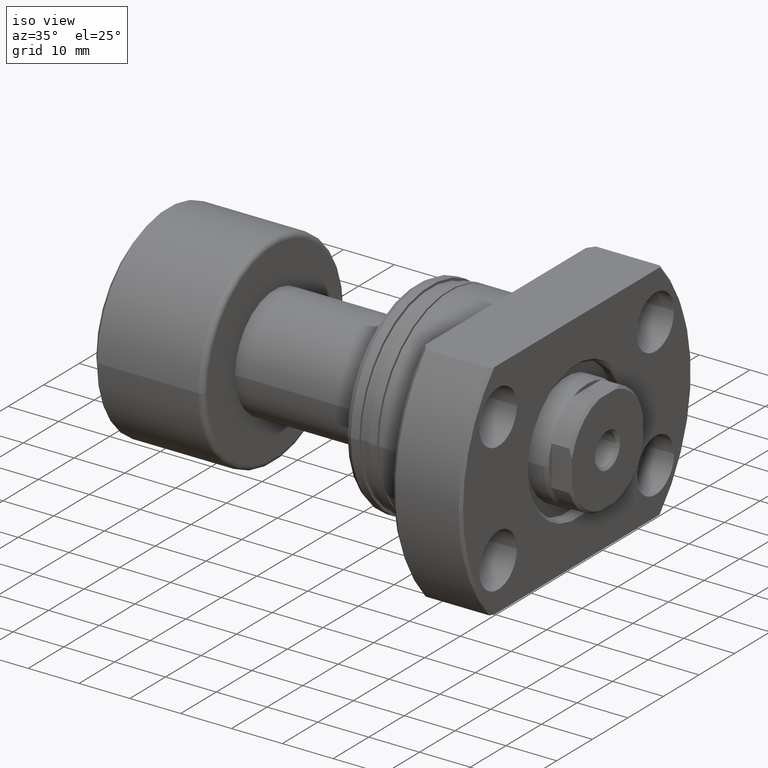
[diagram: clean part render]
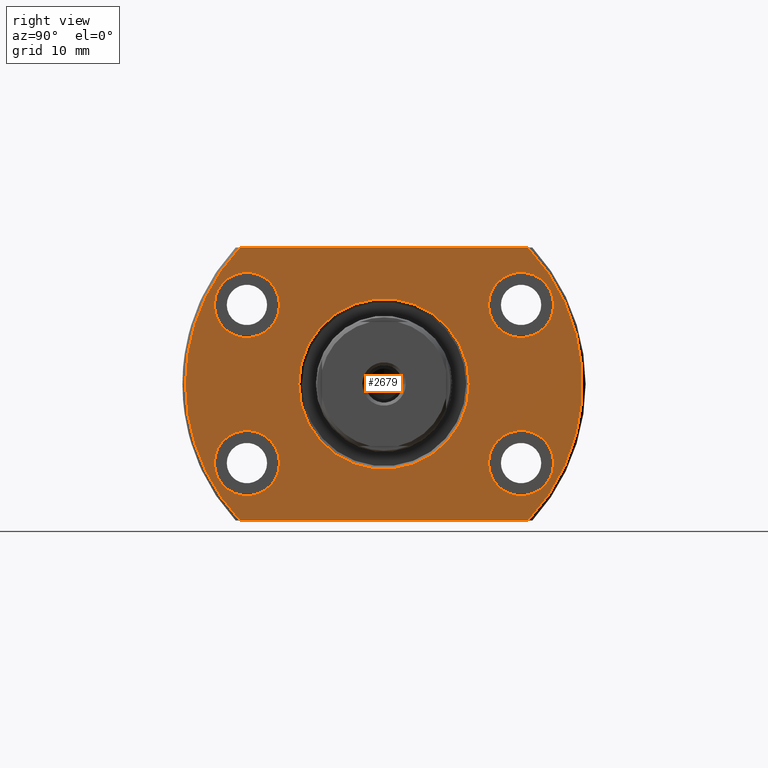
[diagram: tour spotlight — one face highlighted and labeled with its STEP entity id]
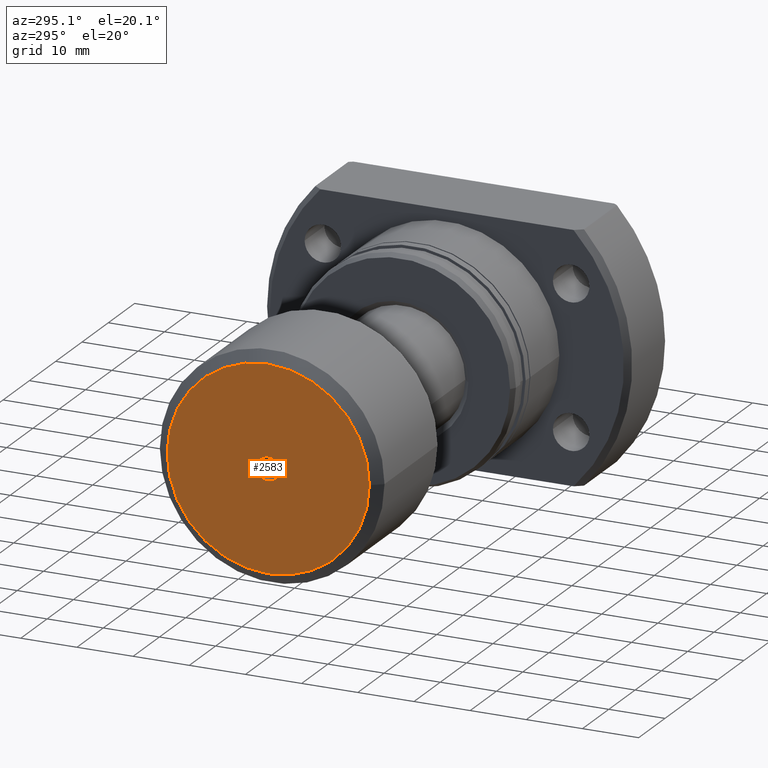
[diagram: tour spotlight — one face highlighted and labeled with its STEP entity id]
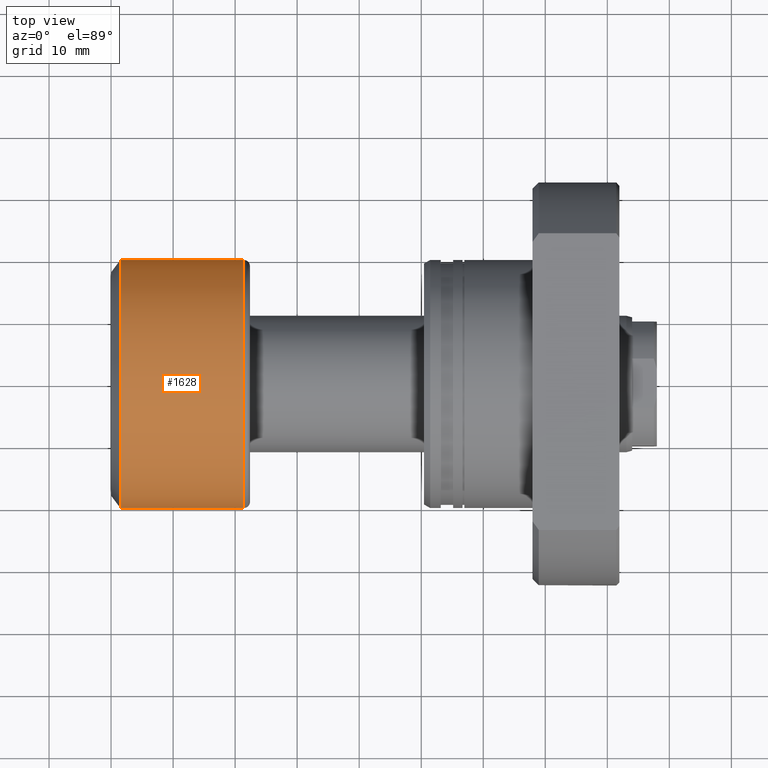
[diagram: tour spotlight — one face highlighted and labeled with its STEP entity id]
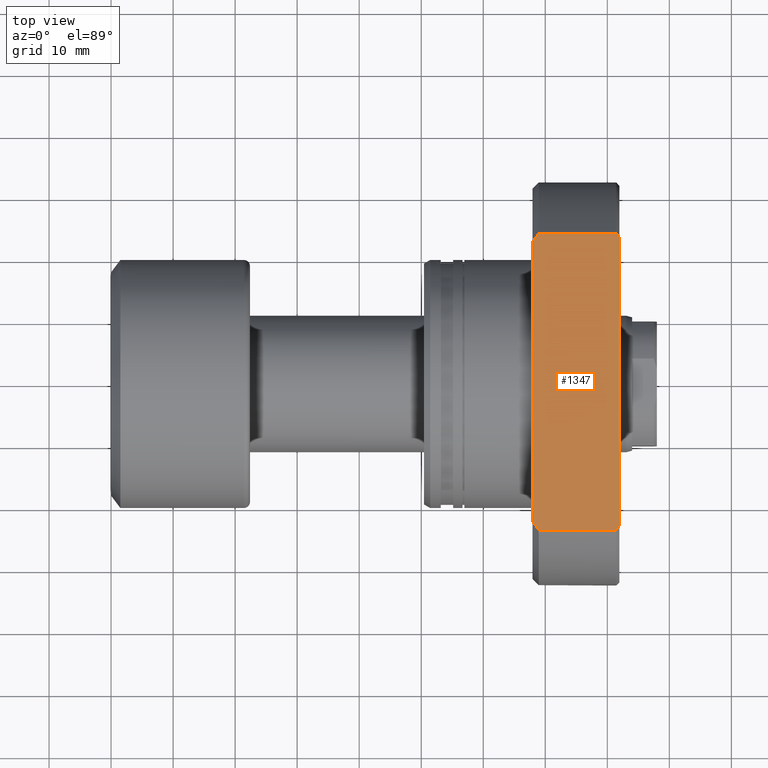
[diagram: tour spotlight — one face highlighted and labeled with its STEP entity id]
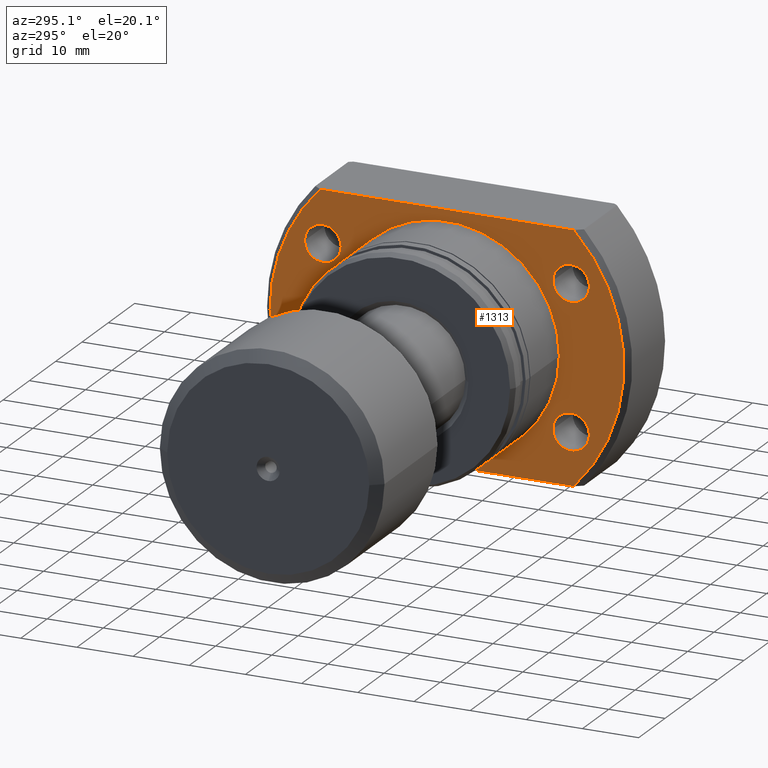
[diagram: tour spotlight — one face highlighted and labeled with its STEP entity id]
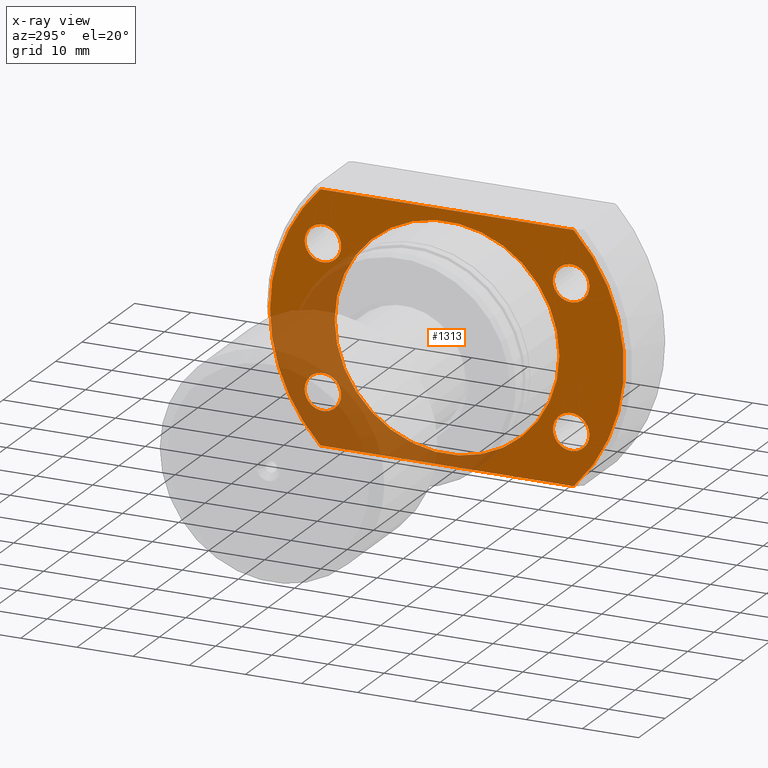
[diagram: x-ray of the same camera — body ghosted, this tour face saturated]
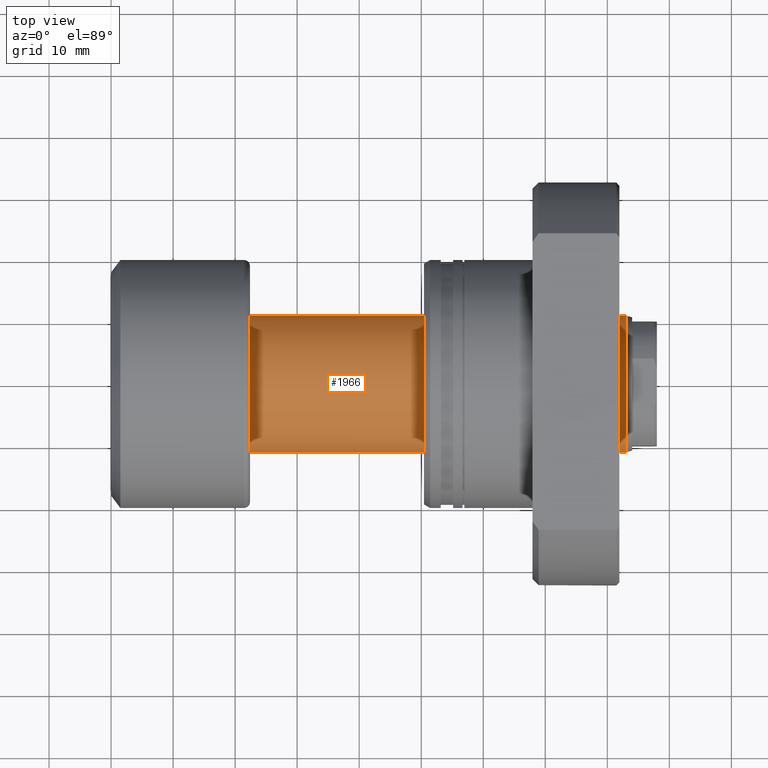
[diagram: tour spotlight — one face highlighted and labeled with its STEP entity id]
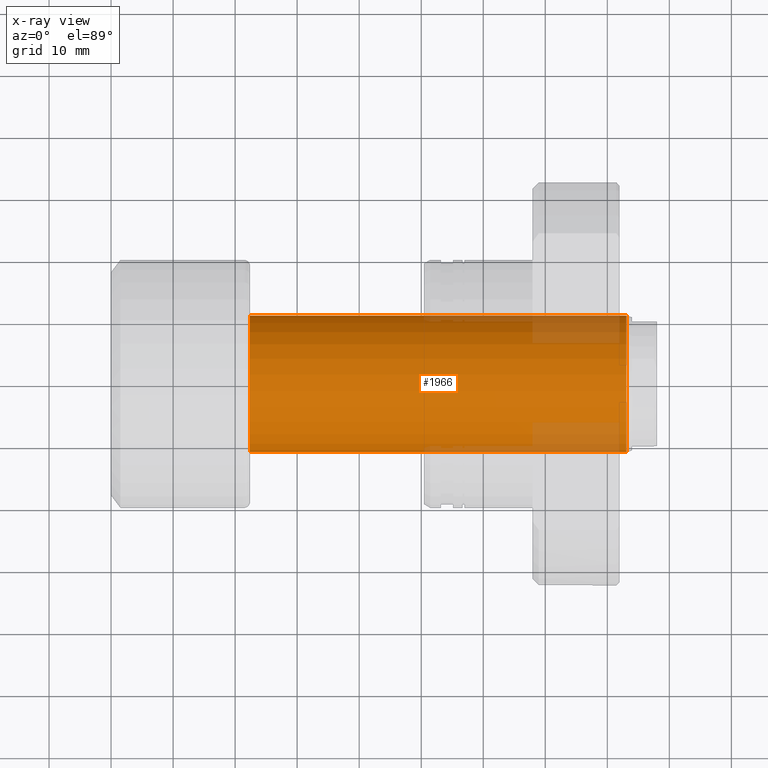
[diagram: x-ray of the same camera — body ghosted, this tour face saturated]
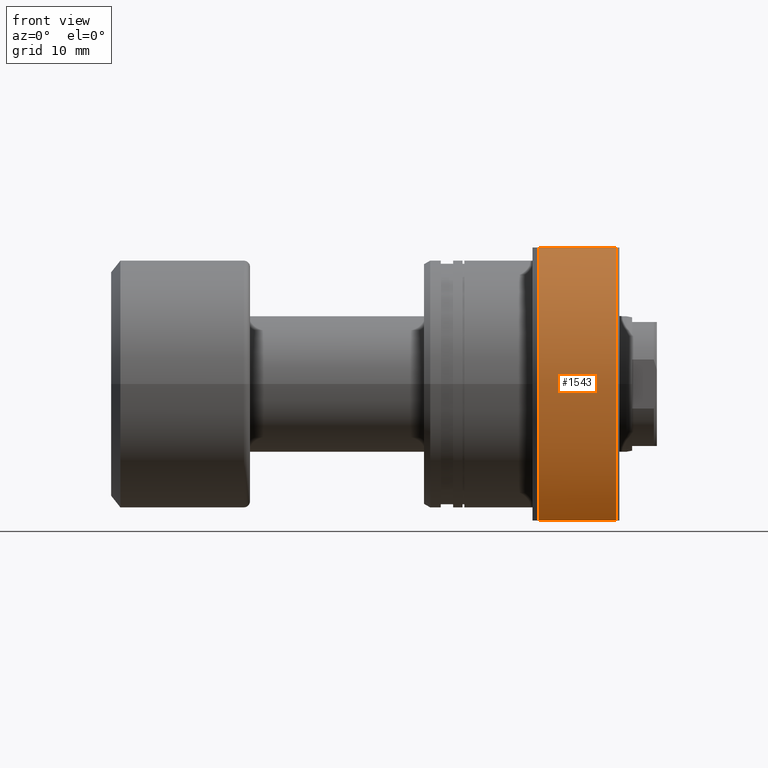
[diagram: tour spotlight — one face highlighted and labeled with its STEP entity id]
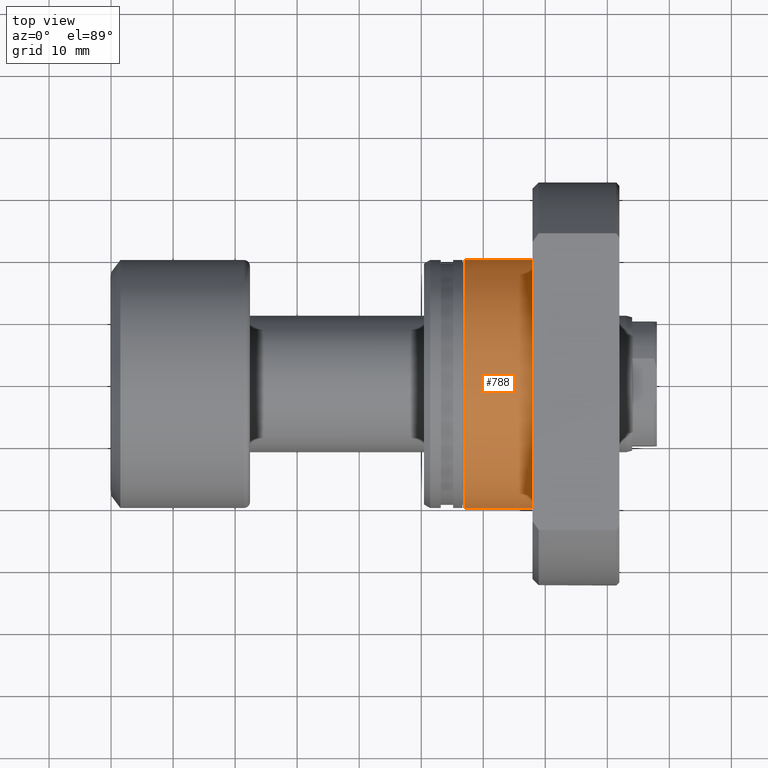
[diagram: tour spotlight — one face highlighted and labeled with its STEP entity id]
A machine part: a face-by-face anatomy tour. The part has 103 B-rep faces; the first image is the clean iso view, then the 8 largest visible faces are spotlighted one at a time (largest first), each with its STEP entity span.

Face 1 — right view, entity #2679. In plain terms, the highlighted planar face has unit normal (-1, -0, 0).
Definition (entity closure, byte-faithful):
#21 = EDGE_LOOP ( 'NONE', ( #2272, #433 ) ) ;
#25 = DIRECTION ( 'NONE',  ( 2.721437331438560389E-17, -1.000000000000000000, 0.000000000000000000 ) ) ;
#29 = VERTEX_POINT ( 'NONE', #755 ) ;
#43 = EDGE_LOOP ( 'NONE', ( #897, #2973, #2156, #275, #171 ) ) ;
#58 = EDGE_LOOP ( 'NONE', ( #637, #689 ) ) ;
#96 = AXIS2_PLACEMENT_3D ( 'NONE', #2412, #3143, #1641 ) ;
#137 = FACE_BOUND ( 'NONE', #1332, .T. ) ;
#143 = AXIS2_PLACEMENT_3D ( 'NONE', #1745, #510, #1462 ) ;
#170 = CARTESIAN_POINT ( 'NONE',  ( 31.50000000000079226, 27.34999999999909548, -12.75000000000000178 ) ) ;
#171 = ORIENTED_EDGE ( 'NONE', *, *, #1686, .T. ) ;
#175 = CARTESIAN_POINT ( 'NONE',  ( 31.50000000000000000, 8.572527594031465301E-16, 0.000000000000000000 ) ) ;
#232 = DIRECTION ( 'NONE',  ( 1.000000000000000000, -2.887798767815668620E-14, -6.310887241768094443E-30 ) ) ;
#236 = EDGE_CURVE ( 'NONE', #2919, #2370, #931, .T. ) ;
#252 = ORIENTED_EDGE ( 'NONE', *, *, #1379, .F. ) ;
#267 = CARTESIAN_POINT ( 'NONE',  ( 31.50000000000063949, 22.09999999999909193, 12.74999999999999822 ) ) ;
#275 = ORIENTED_EDGE ( 'NONE', *, *, #633, .T. ) ;
#283 = CARTESIAN_POINT ( 'NONE',  ( 31.50000000000063949, 22.09999999999909193, 12.74999999999999822 ) ) ;
#298 = AXIS2_PLACEMENT_3D ( 'NONE', #2101, #380, #3111 ) ;
#314 = CIRCLE ( 'NONE', #615, 32.00000000000000000 ) ;
#318 = CIRCLE ( 'NONE', #363, 13.74999999999917577 ) ;
#326 = DIRECTION ( 'NONE',  ( 1.000000000000000000, -2.887798767815668620E-14, -6.310887241768094443E-30 ) ) ;
#363 = AXIS2_PLACEMENT_3D ( 'NONE', #3175, #767, #2448 ) ;
#367 = CARTESIAN_POINT ( 'NONE',  ( 31.50000000000048672, 16.84999999999909193, 12.74999999999999822 ) ) ;
#380 = DIRECTION ( 'NONE',  ( 1.000000000000000000, 2.721437331438560389E-17, -0.000000000000000000 ) ) ;
#419 = DIRECTION ( 'NONE',  ( -0.000000000000000000, 1.000000000000000000, 0.000000000000000000 ) ) ;
#433 = ORIENTED_EDGE ( 'NONE', *, *, #733, .T. ) ;
#474 = CARTESIAN_POINT ( 'NONE',  ( 31.49999999999936051, -22.10000000000091092, -12.75000000000000178 ) ) ;
#481 = CARTESIAN_POINT ( 'NONE',  ( 31.50000000000000000, 23.23790007724450035, -22.00000000000000355 ) ) ;
#510 = DIRECTION ( 'NONE',  ( -1.000000000000000000, -2.721437331438560389E-17, 0.000000000000000000 ) ) ;
#516 = VERTEX_POINT ( 'NONE', #631 ) ;
#600 = EDGE_CURVE ( 'NONE', #2370, #2919, #2955, .T. ) ;
#607 = EDGE_CURVE ( 'NONE', #2293, #2915, #613, .T. ) ;
#613 = CIRCLE ( 'NONE', #1051, 5.250000000000000888 ) ;
#615 = AXIS2_PLACEMENT_3D ( 'NONE', #901, #2149, #2360 ) ;
#631 = CARTESIAN_POINT ( 'NONE',  ( 31.50000000000000000, -23.23790007724449680, 22.00000000000000355 ) ) ;
#633 = EDGE_CURVE ( 'NONE', #2355, #2735, #2932, .T. ) ;
#637 = ORIENTED_EDGE ( 'NONE', *, *, #1735, .F. ) ;
#689 = ORIENTED_EDGE ( 'NONE', *, *, #2900, .F. ) ;
#720 = DIRECTION ( 'NONE',  ( 2.907726969256361977E-14, 1.000000000000000000, 0.000000000000000000 ) ) ;
#733 = EDGE_CURVE ( 'NONE', #1251, #2992, #1151, .T. ) ;
#755 = CARTESIAN_POINT ( 'NONE',  ( 31.49999999999951328, -16.85000000000091092, 12.74999999999999822 ) ) ;
#767 = DIRECTION ( 'NONE',  ( -1.000000000000000000, -2.721437331438560389E-17, 0.000000000000000000 ) ) ;
#818 = AXIS2_PLACEMENT_3D ( 'NONE', #1343, #1331, #1798 ) ;
#820 = VERTEX_POINT ( 'NONE', #1454 ) ;
#824 = EDGE_CURVE ( 'NONE', #29, #2811, #2325, .T. ) ;
#896 = VECTOR ( 'NONE', #419, 1000.000000000000000 ) ;
#897 = ORIENTED_EDGE ( 'NONE', *, *, #2605, .F. ) ;
#901 = CARTESIAN_POINT ( 'NONE',  ( 31.50000000000000000, 8.572527594031465301E-16, 0.000000000000000000 ) ) ;
#931 = CIRCLE ( 'NONE', #2484, 5.250000000000000888 ) ;
#949 = CARTESIAN_POINT ( 'NONE',  ( 31.49999999999936051, -22.10000000000091092, 12.74999999999999822 ) ) ;
#951 = LINE ( 'NONE', #3150, #896 ) ;
#974 = CIRCLE ( 'NONE', #818, 5.250000000000000888 ) ;
#975 = DIRECTION ( 'NONE',  ( 2.907726969256361977E-14, 1.000000000000000000, 0.000000000000000000 ) ) ;
#986 = ORIENTED_EDGE ( 'NONE', *, *, #607, .F. ) ;
#999 = EDGE_CURVE ( 'NONE', #2161, #2355, #314, .T. ) ;
#1051 = AXIS2_PLACEMENT_3D ( 'NONE', #474, #232, #2211 ) ;
#1057 = ORIENTED_EDGE ( 'NONE', *, *, #236, .F. ) ;
#1107 = AXIS2_PLACEMENT_3D ( 'NONE', #949, #2175, #3164 ) ;
#1151 = CIRCLE ( 'NONE', #143, 13.74999999999917577 ) ;
#1185 = CIRCLE ( 'NONE', #2942, 5.250000000000000888 ) ;
#1214 = DIRECTION ( 'NONE',  ( 1.000000000000000000, -2.887798767815668620E-14, -6.310887241768094443E-30 ) ) ;
#1251 = VERTEX_POINT ( 'NONE', #2107 ) ;
#1331 = DIRECTION ( 'NONE',  ( 1.000000000000000000, -2.887798767815668620E-14, -6.310887241768094443E-30 ) ) ;
#1332 = EDGE_LOOP ( 'NONE', ( #2512, #986 ) ) ;
#1343 = CARTESIAN_POINT ( 'NONE',  ( 31.50000000000063949, 22.09999999999909193, -12.75000000000000178 ) ) ;
#1344 = AXIS2_PLACEMENT_3D ( 'NONE', #3205, #1214, #975 ) ;
#1369 = AXIS2_PLACEMENT_3D ( 'NONE', #2482, #2515, #25 ) ;
#1377 = FACE_BOUND ( 'NONE', #2145, .T. ) ;
#1379 = EDGE_CURVE ( 'NONE', #2811, #29, #2538, .T. ) ;
#1444 = DIRECTION ( 'NONE',  ( 1.000000000000000000, 2.721437331438560389E-17, -0.000000000000000000 ) ) ;
#1454 = CARTESIAN_POINT ( 'NONE',  ( 31.50000000000000000, 23.23790007724450035, 22.00000000000000355 ) ) ;
#1462 = DIRECTION ( 'NONE',  ( 0.000000000000000000, -1.000000000000000000, 0.000000000000000000 ) ) ;
#1507 = CIRCLE ( 'NONE', #298, 32.00000000000000000 ) ;
#1523 = CARTESIAN_POINT ( 'NONE',  ( 31.50000000000079226, 27.34999999999909548, 12.74999999999999822 ) ) ;
#1605 = EDGE_LOOP ( 'NONE', ( #2349, #252 ) ) ;
#1616 = FACE_BOUND ( 'NONE', #21, .T. ) ;
#1641 = DIRECTION ( 'NONE',  ( 2.907726969256361977E-14, 1.000000000000000000, 0.000000000000000000 ) ) ;
#1680 = CARTESIAN_POINT ( 'NONE',  ( 31.50000000000000000, -32.00000000000000000, -22.00000000000000355 ) ) ;
#1686 = EDGE_CURVE ( 'NONE', #2735, #820, #1507, .T. ) ;
#1735 = EDGE_CURVE ( 'NONE', #3123, #2627, #2649, .T. ) ;
#1745 = CARTESIAN_POINT ( 'NONE',  ( 31.50000000000000000, -9.092368251749008943E-13, 0.000000000000000000 ) ) ;
#1785 = CARTESIAN_POINT ( 'NONE',  ( 31.50000000000000000, 13.74999999999826805, 0.000000000000000000 ) ) ;
#1798 = DIRECTION ( 'NONE',  ( 2.907726969256361977E-14, 1.000000000000000000, 0.000000000000000000 ) ) ;
#1832 = EDGE_CURVE ( 'NONE', #2992, #1251, #318, .T. ) ;
#1882 = AXIS2_PLACEMENT_3D ( 'NONE', #175, #1444, #2622 ) ;
#1935 = CARTESIAN_POINT ( 'NONE',  ( 31.50000000000048672, 16.84999999999909193, -12.75000000000000178 ) ) ;
#1965 = PLANE ( 'NONE',  #1369 ) ;
#1969 = DIRECTION ( 'NONE',  ( 1.000000000000000000, -2.886466111666351885E-14, 0.000000000000000000 ) ) ;
#2101 = CARTESIAN_POINT ( 'NONE',  ( 31.50000000000000000, 8.572527594031465301E-16, 0.000000000000000000 ) ) ;
#2107 = CARTESIAN_POINT ( 'NONE',  ( 31.50000000000000000, -13.75000000000088107, 1.683889348827607301E-15 ) ) ;
#2132 = CARTESIAN_POINT ( 'NONE',  ( 31.50000000000000000, -32.00000000000000000, 0.000000000000000000 ) ) ;
#2145 = EDGE_LOOP ( 'NONE', ( #3200, #1057 ) ) ;
#2149 = DIRECTION ( 'NONE',  ( 1.000000000000000000, 2.721437331438560389E-17, -0.000000000000000000 ) ) ;
#2156 = ORIENTED_EDGE ( 'NONE', *, *, #999, .T. ) ;
#2161 = VERTEX_POINT ( 'NONE', #2132 ) ;
#2175 = DIRECTION ( 'NONE',  ( 1.000000000000000000, -2.887798767815668620E-14, -6.310887241768094443E-30 ) ) ;
#2209 = CARTESIAN_POINT ( 'NONE',  ( 31.50000000000000000, -23.23790007724450035, -22.00000000000000355 ) ) ;
#2211 = DIRECTION ( 'NONE',  ( 2.907726969256361977E-14, 1.000000000000000000, 0.000000000000000000 ) ) ;
#2223 = FACE_OUTER_BOUND ( 'NONE', #43, .T. ) ;
#2272 = ORIENTED_EDGE ( 'NONE', *, *, #1832, .T. ) ;
#2293 = VERTEX_POINT ( 'NONE', #2517 ) ;
#2319 = CARTESIAN_POINT ( 'NONE',  ( 31.49999999999936051, -22.10000000000091092, -12.75000000000000178 ) ) ;
#2325 = CIRCLE ( 'NONE', #1344, 5.250000000000000888 ) ;
#2349 = ORIENTED_EDGE ( 'NONE', *, *, #824, .F. ) ;
#2355 = VERTEX_POINT ( 'NONE', #2209 ) ;
#2360 = DIRECTION ( 'NONE',  ( 0.000000000000000000, 1.000000000000000000, 0.000000000000000000 ) ) ;
#2367 = FACE_BOUND ( 'NONE', #1605, .T. ) ;
#2370 = VERTEX_POINT ( 'NONE', #1523 ) ;
#2412 = CARTESIAN_POINT ( 'NONE',  ( 31.50000000000063949, 22.09999999999909193, -12.75000000000000178 ) ) ;
#2448 = DIRECTION ( 'NONE',  ( 0.000000000000000000, -1.000000000000000000, 0.000000000000000000 ) ) ;
#2482 = CARTESIAN_POINT ( 'NONE',  ( 31.50000000000000000, -32.00000000000000000, 0.000000000000000000 ) ) ;
#2484 = AXIS2_PLACEMENT_3D ( 'NONE', #283, #1969, #2748 ) ;
#2498 = CARTESIAN_POINT ( 'NONE',  ( 31.49999999999920774, -27.35000000000091092, 12.74999999999999822 ) ) ;
#2512 = ORIENTED_EDGE ( 'NONE', *, *, #2917, .F. ) ;
#2515 = DIRECTION ( 'NONE',  ( -1.000000000000000000, -2.721437331438560389E-17, 0.000000000000000000 ) ) ;
#2517 = CARTESIAN_POINT ( 'NONE',  ( 31.49999999999920774, -27.35000000000091092, -12.75000000000000178 ) ) ;
#2526 = DIRECTION ( 'NONE',  ( 2.907726969256361977E-14, 1.000000000000000000, 0.000000000000000000 ) ) ;
#2538 = CIRCLE ( 'NONE', #1107, 5.250000000000000888 ) ;
#2595 = EDGE_CURVE ( 'NONE', #516, #2161, #2869, .T. ) ;
#2605 = EDGE_CURVE ( 'NONE', #516, #820, #951, .T. ) ;
#2622 = DIRECTION ( 'NONE',  ( 0.000000000000000000, 1.000000000000000000, 0.000000000000000000 ) ) ;
#2627 = VERTEX_POINT ( 'NONE', #1935 ) ;
#2649 = CIRCLE ( 'NONE', #96, 5.250000000000000888 ) ;
#2679 = ADVANCED_FACE ( 'NONE', ( #1616, #1377, #2367, #137, #3010, #2223 ), #1965, .F. ) ;
#2730 = DIRECTION ( 'NONE',  ( -2.721437331438560389E-17, 1.000000000000000000, -0.000000000000000000 ) ) ;
#2735 = VERTEX_POINT ( 'NONE', #481 ) ;
#2748 = DIRECTION ( 'NONE',  ( 2.907726969256361977E-14, 1.000000000000000000, 0.000000000000000000 ) ) ;
#2811 = VERTEX_POINT ( 'NONE', #2498 ) ;
#2848 = VECTOR ( 'NONE', #2730, 1000.000000000000000 ) ;
#2869 = CIRCLE ( 'NONE', #1882, 32.00000000000000000 ) ;
#2900 = EDGE_CURVE ( 'NONE', #2627, #3123, #974, .T. ) ;
#2915 = VERTEX_POINT ( 'NONE', #3051 ) ;
#2917 = EDGE_CURVE ( 'NONE', #2915, #2293, #1185, .T. ) ;
#2919 = VERTEX_POINT ( 'NONE', #367 ) ;
#2932 = LINE ( 'NONE', #1680, #2848 ) ;
#2942 = AXIS2_PLACEMENT_3D ( 'NONE', #2319, #326, #2526 ) ;
#2947 = DIRECTION ( 'NONE',  ( 1.000000000000000000, -2.886466111666351885E-14, 0.000000000000000000 ) ) ;
#2955 = CIRCLE ( 'NONE', #3058, 5.250000000000000888 ) ;
#2973 = ORIENTED_EDGE ( 'NONE', *, *, #2595, .T. ) ;
#2992 = VERTEX_POINT ( 'NONE', #1785 ) ;
#3010 = FACE_BOUND ( 'NONE', #58, .T. ) ;
#3051 = CARTESIAN_POINT ( 'NONE',  ( 31.49999999999951328, -16.85000000000091092, -12.75000000000000178 ) ) ;
#3058 = AXIS2_PLACEMENT_3D ( 'NONE', #267, #2947, #720 ) ;
#3111 = DIRECTION ( 'NONE',  ( 0.000000000000000000, 1.000000000000000000, 0.000000000000000000 ) ) ;
#3123 = VERTEX_POINT ( 'NONE', #170 ) ;
#3143 = DIRECTION ( 'NONE',  ( 1.000000000000000000, -2.887798767815668620E-14, -6.310887241768094443E-30 ) ) ;
#3150 = CARTESIAN_POINT ( 'NONE',  ( 31.50000000000000000, 23.92174742781217489, 22.00000000000000355 ) ) ;
#3164 = DIRECTION ( 'NONE',  ( 2.907726969256361977E-14, 1.000000000000000000, 0.000000000000000000 ) ) ;
#3175 = CARTESIAN_POINT ( 'NONE',  ( 31.50000000000000000, -9.092368251749008943E-13, 0.000000000000000000 ) ) ;
#3200 = ORIENTED_EDGE ( 'NONE', *, *, #600, .F. ) ;
#3205 = CARTESIAN_POINT ( 'NONE',  ( 31.49999999999936051, -22.10000000000091092, 12.74999999999999822 ) ) ;

Face 2 — auxiliary view, entity #2583. In plain terms, the highlighted planar face has unit normal (-1, -0, 0).
Definition (entity closure, byte-faithful):
#45 = EDGE_CURVE ( 'NONE', #1168, #1013, #2844, .T. ) ;
#123 = AXIS2_PLACEMENT_3D ( 'NONE', #696, #2657, #1128 ) ;
#333 = VERTEX_POINT ( 'NONE', #2347 ) ;
#373 = DIRECTION ( 'NONE',  ( 1.069542322069068574E-17, -1.000000000000000000, 0.000000000000000000 ) ) ;
#386 = FACE_BOUND ( 'NONE', #2377, .T. ) ;
#394 = CARTESIAN_POINT ( 'NONE',  ( 1.005923310246402065E-15, 0.000000000000000000, 2.074999999999993516 ) ) ;
#491 = AXIS2_PLACEMENT_3D ( 'NONE', #1985, #2743, #1506 ) ;
#567 = DIRECTION ( 'NONE',  ( 1.069542322069065647E-17, -1.000000000000000000, 0.000000000000000000 ) ) ;
#696 = CARTESIAN_POINT ( 'NONE',  ( 2.011846620492804129E-15, 2.151755106128676308E-32, 0.000000000000000000 ) ) ;
#708 = CIRCLE ( 'NONE', #123, 18.00000000000000355 ) ;
#750 = AXIS2_PLACEMENT_3D ( 'NONE', #2895, #2177, #1883 ) ;
#861 = CARTESIAN_POINT ( 'NONE',  ( 2.011846620492804129E-15, 2.151755106128676308E-32, 0.000000000000000000 ) ) ;
#880 = DIRECTION ( 'NONE',  ( 1.000000000000000000, 1.069542322069065801E-17, 0.000000000000000000 ) ) ;
#1002 = CARTESIAN_POINT ( 'NONE',  ( 1.005923310246402065E-15, 0.000000000000000000, 0.000000000000000000 ) ) ;
#1013 = VERTEX_POINT ( 'NONE', #394 ) ;
#1128 = DIRECTION ( 'NONE',  ( 1.069542322069065647E-17, -1.000000000000000000, 0.000000000000000000 ) ) ;
#1168 = VERTEX_POINT ( 'NONE', #3077 ) ;
#1263 = AXIS2_PLACEMENT_3D ( 'NONE', #861, #3084, #567 ) ;
#1478 = ORIENTED_EDGE ( 'NONE', *, *, #2803, .T. ) ;
#1506 = DIRECTION ( 'NONE',  ( 1.069542322069068574E-17, -1.000000000000000000, 0.000000000000000000 ) ) ;
#1612 = ORIENTED_EDGE ( 'NONE', *, *, #45, .T. ) ;
#1883 = DIRECTION ( 'NONE',  ( 1.069542322069065801E-17, -1.000000000000000000, 0.000000000000000000 ) ) ;
#1985 = CARTESIAN_POINT ( 'NONE',  ( 1.005923310246402065E-15, 0.000000000000000000, 0.000000000000000000 ) ) ;
#2144 = FACE_OUTER_BOUND ( 'NONE', #3070, .T. ) ;
#2177 = DIRECTION ( 'NONE',  ( -1.000000000000000000, -1.069542322069065801E-17, 0.000000000000000000 ) ) ;
#2218 = ORIENTED_EDGE ( 'NONE', *, *, #2477, .T. ) ;
#2312 = CIRCLE ( 'NONE', #491, 2.074999999999993516 ) ;
#2347 = CARTESIAN_POINT ( 'NONE',  ( 2.204364238465235822E-15, -18.00000000000000355, 2.326828918379971365E-15 ) ) ;
#2377 = EDGE_LOOP ( 'NONE', ( #1478, #1612 ) ) ;
#2477 = EDGE_CURVE ( 'NONE', #333, #3122, #2604, .T. ) ;
#2483 = AXIS2_PLACEMENT_3D ( 'NONE', #1002, #880, #373 ) ;
#2583 = ADVANCED_FACE ( 'NONE', ( #386, #2144 ), #2643, .T. ) ;
#2604 = CIRCLE ( 'NONE', #1263, 18.00000000000000355 ) ;
#2643 = PLANE ( 'NONE',  #750 ) ;
#2657 = DIRECTION ( 'NONE',  ( -1.000000000000000000, -1.069542322069065801E-17, -0.000000000000000000 ) ) ;
#2743 = DIRECTION ( 'NONE',  ( 1.000000000000000000, 1.069542322069065801E-17, 0.000000000000000000 ) ) ;
#2803 = EDGE_CURVE ( 'NONE', #1013, #1168, #2312, .T. ) ;
#2844 = CIRCLE ( 'NONE', #2483, 2.074999999999993516 ) ;
#2895 = CARTESIAN_POINT ( 'NONE',  ( 1.005923310246402065E-15, 1.075877553064338154E-32, 0.000000000000000000 ) ) ;
#2960 = ORIENTED_EDGE ( 'NONE', *, *, #3085, .T. ) ;
#3070 = EDGE_LOOP ( 'NONE', ( #2960, #2218 ) ) ;
#3077 = CARTESIAN_POINT ( 'NONE',  ( 1.005923310246402065E-15, 2.541142108230750183E-16, -2.074999999999993516 ) ) ;
#3084 = DIRECTION ( 'NONE',  ( -1.000000000000000000, -1.069542322069065801E-17, -0.000000000000000000 ) ) ;
#3085 = EDGE_CURVE ( 'NONE', #3122, #333, #708, .T. ) ;
#3122 = VERTEX_POINT ( 'NONE', #3161 ) ;
#3161 = CARTESIAN_POINT ( 'NONE',  ( 1.819329002520372041E-15, 18.00000000000000355, 0.000000000000000000 ) ) ;

Face 3 — top view, entity #1628. In plain terms, the highlighted cylindrical surface (partial cylindrical patch) has radius 20 mm, axis along (-1, -0, -0).
Definition (entity closure, byte-faithful):
#61 = FACE_OUTER_BOUND ( 'NONE', #1847, .T. ) ;
#91 = VECTOR ( 'NONE', #569, 1000.000000000000000 ) ;
#106 = VERTEX_POINT ( 'NONE', #2384 ) ;
#180 = ORIENTED_EDGE ( 'NONE', *, *, #2949, .F. ) ;
#286 = CARTESIAN_POINT ( 'NONE',  ( 2.139084644138131786E-16, -20.00000000000000000, 0.000000000000000000 ) ) ;
#461 = ORIENTED_EDGE ( 'NONE', *, *, #1177, .T. ) ;
#476 = VERTEX_POINT ( 'NONE', #1208 ) ;
#569 = DIRECTION ( 'NONE',  ( -1.000000000000000000, -1.069542322069065801E-17, -0.000000000000000000 ) ) ;
#794 = VERTEX_POINT ( 'NONE', #3173 ) ;
#798 = CIRCLE ( 'NONE', #1157, 20.00000000000000000 ) ;
#844 = DIRECTION ( 'NONE',  ( 1.069542322069065955E-17, -1.000000000000000000, 0.000000000000000000 ) ) ;
#1115 = CARTESIAN_POINT ( 'NONE',  ( 1.500000000000002442, 1.604313483103601552E-17, 0.000000000000000000 ) ) ;
#1157 = AXIS2_PLACEMENT_3D ( 'NONE', #2235, #1702, #2724 ) ;
#1177 = EDGE_CURVE ( 'NONE', #106, #476, #2600, .T. ) ;
#1208 = CARTESIAN_POINT ( 'NONE',  ( 1.500000000000002442, 20.00000000000000000, 0.000000000000000000 ) ) ;
#1315 = DIRECTION ( 'NONE',  ( -1.000000000000000000, -1.069542322069065801E-17, -0.000000000000000000 ) ) ;
#1519 = CARTESIAN_POINT ( 'NONE',  ( 21.40000000000000213, -20.00000000000000000, 0.000000000000000000 ) ) ;
#1628 = ADVANCED_FACE ( 'NONE', ( #61 ), #2047, .T. ) ;
#1702 = DIRECTION ( 'NONE',  ( -1.000000000000000000, -1.069542322069065801E-17, -0.000000000000000000 ) ) ;
#1766 = CARTESIAN_POINT ( 'NONE',  ( 0.000000000000000000, 0.000000000000000000, 0.000000000000000000 ) ) ;
#1823 = DIRECTION ( 'NONE',  ( -1.000000000000000000, -1.069542322069065801E-17, -0.000000000000000000 ) ) ;
#1839 = EDGE_CURVE ( 'NONE', #2788, #106, #798, .T. ) ;
#1847 = EDGE_LOOP ( 'NONE', ( #2511, #461, #180, #2501 ) ) ;
#2036 = VECTOR ( 'NONE', #1823, 1000.000000000000000 ) ;
#2047 = CYLINDRICAL_SURFACE ( 'NONE', #2387, 20.00000000000000000 ) ;
#2066 = EDGE_CURVE ( 'NONE', #2788, #794, #2790, .T. ) ;
#2090 = DIRECTION ( 'NONE',  ( 1.084202172485504434E-17, -1.000000000000000000, 0.000000000000000000 ) ) ;
#2157 = CIRCLE ( 'NONE', #3044, 20.00000000000000000 ) ;
#2235 = CARTESIAN_POINT ( 'NONE',  ( 21.40000000000000213, 2.288820569227801297E-16, 0.000000000000000000 ) ) ;
#2304 = DIRECTION ( 'NONE',  ( -1.000000000000000000, -1.069542322069065801E-17, -0.000000000000000000 ) ) ;
#2384 = CARTESIAN_POINT ( 'NONE',  ( 21.40000000000000213, 20.00000000000000000, 2.449293598294706513E-15 ) ) ;
#2387 = AXIS2_PLACEMENT_3D ( 'NONE', #1766, #1315, #844 ) ;
#2501 = ORIENTED_EDGE ( 'NONE', *, *, #2066, .F. ) ;
#2511 = ORIENTED_EDGE ( 'NONE', *, *, #1839, .T. ) ;
#2600 = LINE ( 'NONE', #3071, #91 ) ;
#2724 = DIRECTION ( 'NONE',  ( 0.000000000000000000, -1.000000000000000000, 0.000000000000000000 ) ) ;
#2788 = VERTEX_POINT ( 'NONE', #1519 ) ;
#2790 = LINE ( 'NONE', #286, #2036 ) ;
#2949 = EDGE_CURVE ( 'NONE', #794, #476, #2157, .T. ) ;
#3044 = AXIS2_PLACEMENT_3D ( 'NONE', #1115, #2304, #2090 ) ;
#3071 = CARTESIAN_POINT ( 'NONE',  ( -2.139084644138131786E-16, 20.00000000000000000, 2.449293598294706513E-15 ) ) ;
#3173 = CARTESIAN_POINT ( 'NONE',  ( 1.500000000000002887, -20.00000000000000000, 2.449293598294706513E-15 ) ) ;

Face 4 — top view, entity #1347. In plain terms, the highlighted planar face has unit normal (0, 0, 1).
Definition (entity closure, byte-faithful):
#83 = CARTESIAN_POINT ( 'NONE',  ( 31.33407032320117125, -23.46639532164749298, 22.00000000000000355 ) ) ;
#173 = PLANE ( 'NONE',  #1203 ) ;
#231 = B_SPLINE_CURVE_WITH_KNOTS ( 'NONE', 3,
 ( #2475, #3223, #2022, #743 ),
 .UNSPECIFIED., .F., .F.,
 ( 4, 4 ),
 ( 0.09020251661949948985, 0.09105413011805403578 ),
 .UNSPECIFIED. ) ;
#316 = CARTESIAN_POINT ( 'NONE',  ( 17.50000000000000355, 22.54440063519089676, 22.00000000000000355 ) ) ;
#383 = EDGE_CURVE ( 'NONE', #1084, #721, #2817, .T. ) ;
#419 = DIRECTION ( 'NONE',  ( -0.000000000000000000, 1.000000000000000000, 0.000000000000000000 ) ) ;
#516 = VERTEX_POINT ( 'NONE', #631 ) ;
#526 = EDGE_CURVE ( 'NONE', #721, #2870, #2668, .T. ) ;
#548 = CARTESIAN_POINT ( 'NONE',  ( 31.16738888422669262, -23.69433349186106597, 22.00000000000000355 ) ) ;
#550 = VERTEX_POINT ( 'NONE', #1148 ) ;
#605 = CARTESIAN_POINT ( 'NONE',  ( 31.50000000000000000, -23.23790007724449680, 22.00000000000000355 ) ) ;
#614 = ORIENTED_EDGE ( 'NONE', *, *, #2880, .T. ) ;
#631 = CARTESIAN_POINT ( 'NONE',  ( 31.50000000000000000, -23.23790007724449680, 22.00000000000000355 ) ) ;
#721 = VERTEX_POINT ( 'NONE', #1221 ) ;
#722 = VECTOR ( 'NONE', #2528, 1000.000000000000000 ) ;
#743 = CARTESIAN_POINT ( 'NONE',  ( 31.00000000000007461, 23.92174742781126895, 21.99999999999998934 ) ) ;
#820 = VERTEX_POINT ( 'NONE', #1454 ) ;
#845 = CARTESIAN_POINT ( 'NONE',  ( 31.00000000000007461, -23.92174742781125474, 22.00000000000001066 ) ) ;
#896 = VECTOR ( 'NONE', #419, 1000.000000000000000 ) ;
#913 = VECTOR ( 'NONE', #2035, 1000.000000000000000 ) ;
#928 = ORIENTED_EDGE ( 'NONE', *, *, #2605, .T. ) ;
#940 = B_SPLINE_CURVE_WITH_KNOTS ( 'NONE', 3,
 ( #2677, #1166, #2877, #2126 ),
 .UNSPECIFIED., .F., .F.,
 ( 4, 4 ),
 ( 0.03779752499755586331, 0.03950166028446448763 ),
 .UNSPECIFIED. ) ;
#951 = LINE ( 'NONE', #3150, #896 ) ;
#973 = B_SPLINE_CURVE_WITH_KNOTS ( 'NONE', 3,
 ( #845, #548, #83, #605 ),
 .UNSPECIFIED., .F., .F.,
 ( 4, 4 ),
 ( 0.03779112510166918876, 0.03863931077161771033 ),
 .UNSPECIFIED. ) ;
#1007 = VERTEX_POINT ( 'NONE', #1872 ) ;
#1060 = CARTESIAN_POINT ( 'NONE',  ( 31.00000000000007461, 23.92174742781126895, 21.99999999999998934 ) ) ;
#1079 = ORIENTED_EDGE ( 'NONE', *, *, #2296, .T. ) ;
#1084 = VERTEX_POINT ( 'NONE', #316 ) ;
#1148 = CARTESIAN_POINT ( 'NONE',  ( 18.49999999999998934, 23.92174742781163133, 21.99999999999998934 ) ) ;
#1165 = CARTESIAN_POINT ( 'NONE',  ( 17.50000000000001776, -22.54440063519093940, 22.00000000000000355 ) ) ;
#1166 = CARTESIAN_POINT ( 'NONE',  ( 18.16368991444090497, 23.46483775540317041, 22.00000000000000355 ) ) ;
#1173 = EDGE_CURVE ( 'NONE', #550, #2397, #1591, .T. ) ;
#1203 = AXIS2_PLACEMENT_3D ( 'NONE', #1613, #2875, #1414 ) ;
#1221 = CARTESIAN_POINT ( 'NONE',  ( 17.50000000000001776, -22.54440063519093940, 22.00000000000000355 ) ) ;
#1347 = ADVANCED_FACE ( 'NONE', ( #1914 ), #173, .T. ) ;
#1414 = DIRECTION ( 'NONE',  ( 1.000000000000000000, 0.000000000000000000, -0.000000000000000000 ) ) ;
#1454 = CARTESIAN_POINT ( 'NONE',  ( 31.50000000000000000, 23.23790007724450035, 22.00000000000000355 ) ) ;
#1568 = CARTESIAN_POINT ( 'NONE',  ( 18.49999999999998934, -23.92174742781089591, 22.00000000000001066 ) ) ;
#1575 = DIRECTION ( 'NONE',  ( 1.000000000000000000, -2.886466111666351885E-14, -0.000000000000000000 ) ) ;
#1591 = LINE ( 'NONE', #1852, #2328 ) ;
#1613 = CARTESIAN_POINT ( 'NONE',  ( -2.498001805406602216E-13, 23.92174742781217489, 22.00000000000000355 ) ) ;
#1614 = CARTESIAN_POINT ( 'NONE',  ( 17.82998096711740033, -23.00546414414808183, 22.00000000000000355 ) ) ;
#1623 = ORIENTED_EDGE ( 'NONE', *, *, #383, .T. ) ;
#1828 = LINE ( 'NONE', #2061, #913 ) ;
#1852 = CARTESIAN_POINT ( 'NONE',  ( -2.498001805406602216E-13, 23.92174742781216423, 21.99999999999998934 ) ) ;
#1872 = CARTESIAN_POINT ( 'NONE',  ( 31.00000000000007461, -23.92174742781125474, 22.00000000000001066 ) ) ;
#1914 = FACE_OUTER_BOUND ( 'NONE', #3012, .T. ) ;
#2022 = CARTESIAN_POINT ( 'NONE',  ( 31.16744843440999091, 23.69425258719626370, 22.00000000000000355 ) ) ;
#2035 = DIRECTION ( 'NONE',  ( 1.000000000000000000, -2.886466111666351885E-14, -0.000000000000000000 ) ) ;
#2061 = CARTESIAN_POINT ( 'NONE',  ( -1.637578961322105897E-12, -23.92174742781035945, 22.00000000000001066 ) ) ;
#2126 = CARTESIAN_POINT ( 'NONE',  ( 17.50000000000000355, 22.54440063519089676, 22.00000000000000355 ) ) ;
#2296 = EDGE_CURVE ( 'NONE', #820, #2397, #231, .T. ) ;
#2328 = VECTOR ( 'NONE', #1575, 1000.000000000000000 ) ;
#2334 = CARTESIAN_POINT ( 'NONE',  ( 17.50000000000000000, -19.99999999999999645, 22.00000000000000355 ) ) ;
#2397 = VERTEX_POINT ( 'NONE', #1060 ) ;
#2405 = ORIENTED_EDGE ( 'NONE', *, *, #2565, .T. ) ;
#2418 = CARTESIAN_POINT ( 'NONE',  ( 18.16344437228347886, -23.46450416271138906, 22.00000000000000355 ) ) ;
#2425 = ORIENTED_EDGE ( 'NONE', *, *, #2838, .T. ) ;
#2475 = CARTESIAN_POINT ( 'NONE',  ( 31.50000000000000000, 23.23790007724450035, 22.00000000000000355 ) ) ;
#2528 = DIRECTION ( 'NONE',  ( 2.721437331438560389E-17, -1.000000000000000000, 0.000000000000000000 ) ) ;
#2565 = EDGE_CURVE ( 'NONE', #550, #1084, #940, .T. ) ;
#2605 = EDGE_CURVE ( 'NONE', #516, #820, #951, .T. ) ;
#2668 = B_SPLINE_CURVE_WITH_KNOTS ( 'NONE', 3,
 ( #1165, #1614, #2418, #2912 ),
 .UNSPECIFIED., .F., .F.,
 ( 4, 4 ),
 ( 0.08934887722955515976, 0.09106053602301780736 ),
 .UNSPECIFIED. ) ;
#2677 = CARTESIAN_POINT ( 'NONE',  ( 18.49999999999998934, 23.92174742781163133, 21.99999999999998934 ) ) ;
#2817 = LINE ( 'NONE', #2334, #722 ) ;
#2838 = EDGE_CURVE ( 'NONE', #1007, #516, #973, .T. ) ;
#2857 = ORIENTED_EDGE ( 'NONE', *, *, #526, .T. ) ;
#2870 = VERTEX_POINT ( 'NONE', #1568 ) ;
#2875 = DIRECTION ( 'NONE',  ( 0.000000000000000000, 0.000000000000000000, 1.000000000000000000 ) ) ;
#2877 = CARTESIAN_POINT ( 'NONE',  ( 17.83023180395318263, 23.00581462409452982, 22.00000000000000355 ) ) ;
#2880 = EDGE_CURVE ( 'NONE', #2870, #1007, #1828, .T. ) ;
#2912 = CARTESIAN_POINT ( 'NONE',  ( 18.49999999999998934, -23.92174742781089591, 22.00000000000001066 ) ) ;
#3012 = EDGE_LOOP ( 'NONE', ( #2405, #1623, #2857, #614, #2425, #928, #1079, #3115 ) ) ;
#3115 = ORIENTED_EDGE ( 'NONE', *, *, #1173, .F. ) ;
#3150 = CARTESIAN_POINT ( 'NONE',  ( 31.50000000000000000, 23.92174742781217489, 22.00000000000000355 ) ) ;
#3223 = CARTESIAN_POINT ( 'NONE',  ( 31.33413051841647246, 23.46631242917946381, 22.00000000000000355 ) ) ;

Face 5 — auxiliary view, entity #1313. An x-ray twin of the same camera follows (body ghosted, this face saturated) — the face is partly hidden behind the body. In plain terms, the highlighted planar face has unit normal (1, 0, 0).
Definition (entity closure, byte-faithful):
#5 = ORIENTED_EDGE ( 'NONE', *, *, #642, .T. ) ;
#7 = DIRECTION ( 'NONE',  ( 1.000000000000000000, 2.721437331438560389E-17, -0.000000000000000000 ) ) ;
#9 = AXIS2_PLACEMENT_3D ( 'NONE', #245, #1024, #2720 ) ;
#37 = AXIS2_PLACEMENT_3D ( 'NONE', #2179, #2162, #139 ) ;
#56 = EDGE_CURVE ( 'NONE', #1801, #857, #1445, .T. ) ;
#67 = EDGE_CURVE ( 'NONE', #2953, #2063, #2688, .T. ) ;
#139 = DIRECTION ( 'NONE',  ( 0.000000000000000000, 1.000000000000000000, 0.000000000000000000 ) ) ;
#152 = CARTESIAN_POINT ( 'NONE',  ( 17.50000000000000355, 31.49999999999993250, 0.000000000000000000 ) ) ;
#155 = FACE_BOUND ( 'NONE', #553, .T. ) ;
#187 = EDGE_CURVE ( 'NONE', #2051, #1803, #1592, .T. ) ;
#208 = CARTESIAN_POINT ( 'NONE',  ( 17.50000000000000000, 22.09999999999949338, 12.74999999999999822 ) ) ;
#245 = CARTESIAN_POINT ( 'NONE',  ( 17.50000000000000355, 4.762515330017481928E-16, 0.000000000000000000 ) ) ;
#264 = DIRECTION ( 'NONE',  ( 0.000000000000000000, 1.000000000000000000, 0.000000000000000000 ) ) ;
#272 = CARTESIAN_POINT ( 'NONE',  ( 17.50000000000000000, -18.85000000000050946, 12.74999999999999822 ) ) ;
#279 = CIRCLE ( 'NONE', #2341, 3.249999999999999556 ) ;
#296 = LINE ( 'NONE', #2279, #2927 ) ;
#316 = CARTESIAN_POINT ( 'NONE',  ( 17.50000000000000355, 22.54440063519089676, 22.00000000000000355 ) ) ;
#335 = DIRECTION ( 'NONE',  ( 1.000000000000000000, 2.721437331438560389E-17, -0.000000000000000000 ) ) ;
#365 = CARTESIAN_POINT ( 'NONE',  ( 17.50000000000000355, 22.54440063519089676, -22.00000000000000355 ) ) ;
#368 = DIRECTION ( 'NONE',  ( -2.721437331438560389E-17, 1.000000000000000000, 0.000000000000000000 ) ) ;
#383 = EDGE_CURVE ( 'NONE', #1084, #721, #2817, .T. ) ;
#421 = ORIENTED_EDGE ( 'NONE', *, *, #672, .F. ) ;
#489 = ORIENTED_EDGE ( 'NONE', *, *, #2410, .T. ) ;
#497 = DIRECTION ( 'NONE',  ( 1.000000000000000000, 2.721437331438560389E-17, -0.000000000000000000 ) ) ;
#528 = CARTESIAN_POINT ( 'NONE',  ( 17.50000000000000000, 4.762515330017480942E-16, 0.000000000000000000 ) ) ;
#553 = EDGE_LOOP ( 'NONE', ( #489, #2662 ) ) ;
#570 = AXIS2_PLACEMENT_3D ( 'NONE', #3116, #1897, #368 ) ;
#574 = CARTESIAN_POINT ( 'NONE',  ( 17.50000000000000000, -25.35000000000050591, 12.74999999999999822 ) ) ;
#596 = CIRCLE ( 'NONE', #2416, 3.249999999999999556 ) ;
#642 = EDGE_CURVE ( 'NONE', #2063, #2953, #1913, .T. ) ;
#649 = VERTEX_POINT ( 'NONE', #2456 ) ;
#672 = EDGE_CURVE ( 'NONE', #3102, #1084, #2488, .T. ) ;
#711 = CARTESIAN_POINT ( 'NONE',  ( 17.50000000000000000, -22.10000000000050946, 12.74999999999999822 ) ) ;
#721 = VERTEX_POINT ( 'NONE', #1221 ) ;
#722 = VECTOR ( 'NONE', #2528, 1000.000000000000000 ) ;
#723 = AXIS2_PLACEMENT_3D ( 'NONE', #1467, #497, #3199 ) ;
#747 = CARTESIAN_POINT ( 'NONE',  ( 17.50000000000000355, 4.762515330017481928E-16, 0.000000000000000000 ) ) ;
#783 = DIRECTION ( 'NONE',  ( 0.000000000000000000, 1.000000000000000000, 0.000000000000000000 ) ) ;
#791 = AXIS2_PLACEMENT_3D ( 'NONE', #3055, #1802, #1819 ) ;
#801 = EDGE_CURVE ( 'NONE', #721, #2653, #833, .T. ) ;
#833 = CIRCLE ( 'NONE', #2636, 31.49999999999993250 ) ;
#857 = VERTEX_POINT ( 'NONE', #2040 ) ;
#874 = ORIENTED_EDGE ( 'NONE', *, *, #2546, .T. ) ;
#877 = FACE_BOUND ( 'NONE', #946, .T. ) ;
#907 = FACE_BOUND ( 'NONE', #1039, .T. ) ;
#922 = CARTESIAN_POINT ( 'NONE',  ( 17.50000000000000355, 4.762515330017481928E-16, 0.000000000000000000 ) ) ;
#946 = EDGE_LOOP ( 'NONE', ( #5, #3130 ) ) ;
#958 = ORIENTED_EDGE ( 'NONE', *, *, #2320, .F. ) ;
#968 = ORIENTED_EDGE ( 'NONE', *, *, #187, .T. ) ;
#1024 = DIRECTION ( 'NONE',  ( 1.000000000000000000, 2.721437331438560389E-17, -0.000000000000000000 ) ) ;
#1039 = EDGE_LOOP ( 'NONE', ( #1611, #1729 ) ) ;
#1046 = EDGE_CURVE ( 'NONE', #1554, #1349, #1500, .T. ) ;
#1084 = VERTEX_POINT ( 'NONE', #316 ) ;
#1199 = CARTESIAN_POINT ( 'NONE',  ( 17.50000000000000000, -22.10000000000050946, 12.74999999999999822 ) ) ;
#1221 = CARTESIAN_POINT ( 'NONE',  ( 17.50000000000001776, -22.54440063519093940, 22.00000000000000355 ) ) ;
#1233 = DIRECTION ( 'NONE',  ( 1.000000000000000000, 2.721437331438560389E-17, -0.000000000000000000 ) ) ;
#1239 = DIRECTION ( 'NONE',  ( 2.721437331438560389E-17, -1.000000000000000000, 0.000000000000000000 ) ) ;
#1288 = ORIENTED_EDGE ( 'NONE', *, *, #56, .T. ) ;
#1304 = DIRECTION ( 'NONE',  ( 0.000000000000000000, 1.000000000000000000, 0.000000000000000000 ) ) ;
#1313 = ADVANCED_FACE ( 'NONE', ( #155, #3099, #877, #3131, #907, #2860 ), #1426, .F. ) ;
#1349 = VERTEX_POINT ( 'NONE', #2659 ) ;
#1398 = EDGE_CURVE ( 'NONE', #649, #2994, #1813, .T. ) ;
#1407 = CIRCLE ( 'NONE', #3171, 19.99999999999999645 ) ;
#1420 = AXIS2_PLACEMENT_3D ( 'NONE', #1831, #3053, #1816 ) ;
#1426 = PLANE ( 'NONE',  #570 ) ;
#1428 = CARTESIAN_POINT ( 'NONE',  ( 17.50000000000001776, -22.54440063519093940, -22.00000000000000355 ) ) ;
#1445 = CIRCLE ( 'NONE', #37, 3.249999999999999556 ) ;
#1452 = AXIS2_PLACEMENT_3D ( 'NONE', #922, #2858, #2432 ) ;
#1467 = CARTESIAN_POINT ( 'NONE',  ( 17.50000000000000000, -22.10000000000050946, -12.75000000000000178 ) ) ;
#1500 = CIRCLE ( 'NONE', #791, 19.99999999999999645 ) ;
#1535 = EDGE_LOOP ( 'NONE', ( #874, #1288 ) ) ;
#1554 = VERTEX_POINT ( 'NONE', #3049 ) ;
#1592 = CIRCLE ( 'NONE', #2633, 3.249999999999999556 ) ;
#1611 = ORIENTED_EDGE ( 'NONE', *, *, #2005, .T. ) ;
#1672 = CARTESIAN_POINT ( 'NONE',  ( 17.50000000000000000, 18.84999999999949694, -12.75000000000000178 ) ) ;
#1729 = ORIENTED_EDGE ( 'NONE', *, *, #1046, .T. ) ;
#1772 = DIRECTION ( 'NONE',  ( 1.000000000000000000, 2.721437331438560389E-17, -0.000000000000000000 ) ) ;
#1779 = DIRECTION ( 'NONE',  ( 0.000000000000000000, 1.000000000000000000, 0.000000000000000000 ) ) ;
#1788 = VERTEX_POINT ( 'NONE', #365 ) ;
#1801 = VERTEX_POINT ( 'NONE', #1672 ) ;
#1802 = DIRECTION ( 'NONE',  ( 1.000000000000000000, 2.721437331438560389E-17, -0.000000000000000000 ) ) ;
#1803 = VERTEX_POINT ( 'NONE', #272 ) ;
#1813 = CIRCLE ( 'NONE', #2914, 3.249999999999999556 ) ;
#1816 = DIRECTION ( 'NONE',  ( 0.000000000000000000, 1.000000000000000000, 0.000000000000000000 ) ) ;
#1819 = DIRECTION ( 'NONE',  ( 0.000000000000000000, 1.000000000000000000, 0.000000000000000000 ) ) ;
#1831 = CARTESIAN_POINT ( 'NONE',  ( 17.50000000000000000, 22.09999999999949338, -12.75000000000000178 ) ) ;
#1848 = DIRECTION ( 'NONE',  ( 0.000000000000000000, 1.000000000000000000, 0.000000000000000000 ) ) ;
#1875 = CARTESIAN_POINT ( 'NONE',  ( 17.50000000000000000, 25.34999999999949338, 12.74999999999999822 ) ) ;
#1897 = DIRECTION ( 'NONE',  ( 1.000000000000000000, 2.721437331438560389E-17, -0.000000000000000000 ) ) ;
#1908 = ORIENTED_EDGE ( 'NONE', *, *, #383, .F. ) ;
#1913 = CIRCLE ( 'NONE', #723, 3.249999999999999556 ) ;
#1941 = DIRECTION ( 'NONE',  ( 1.000000000000000000, 2.721437331438560389E-17, -0.000000000000000000 ) ) ;
#1983 = DIRECTION ( 'NONE',  ( 0.000000000000000000, 1.000000000000000000, 0.000000000000000000 ) ) ;
#1998 = DIRECTION ( 'NONE',  ( 0.000000000000000000, 1.000000000000000000, 0.000000000000000000 ) ) ;
#2005 = EDGE_CURVE ( 'NONE', #1349, #1554, #1407, .T. ) ;
#2040 = CARTESIAN_POINT ( 'NONE',  ( 17.50000000000000000, 25.34999999999949338, -12.75000000000000178 ) ) ;
#2044 = CARTESIAN_POINT ( 'NONE',  ( 17.50000000000000000, -18.85000000000050946, -12.75000000000000178 ) ) ;
#2050 = CARTESIAN_POINT ( 'NONE',  ( 17.50000000000000000, 22.09999999999949338, 12.74999999999999822 ) ) ;
#2051 = VERTEX_POINT ( 'NONE', #574 ) ;
#2063 = VERTEX_POINT ( 'NONE', #2044 ) ;
#2080 = ORIENTED_EDGE ( 'NONE', *, *, #801, .F. ) ;
#2162 = DIRECTION ( 'NONE',  ( 1.000000000000000000, 2.721437331438560389E-17, -0.000000000000000000 ) ) ;
#2179 = CARTESIAN_POINT ( 'NONE',  ( 17.50000000000000000, 22.09999999999949338, -12.75000000000000178 ) ) ;
#2279 = CARTESIAN_POINT ( 'NONE',  ( 17.50000000000000000, -19.99999999999999645, -22.00000000000000355 ) ) ;
#2298 = CIRCLE ( 'NONE', #1420, 3.249999999999999556 ) ;
#2307 = DIRECTION ( 'NONE',  ( 1.000000000000000000, 2.721437331438560389E-17, -0.000000000000000000 ) ) ;
#2320 = EDGE_CURVE ( 'NONE', #1788, #3102, #3179, .T. ) ;
#2334 = CARTESIAN_POINT ( 'NONE',  ( 17.50000000000000000, -19.99999999999999645, 22.00000000000000355 ) ) ;
#2341 = AXIS2_PLACEMENT_3D ( 'NONE', #2050, #2307, #1304 ) ;
#2353 = EDGE_LOOP ( 'NONE', ( #2535, #968 ) ) ;
#2354 = EDGE_CURVE ( 'NONE', #1788, #2653, #296, .T. ) ;
#2410 = EDGE_CURVE ( 'NONE', #2994, #649, #279, .T. ) ;
#2416 = AXIS2_PLACEMENT_3D ( 'NONE', #711, #1233, #1998 ) ;
#2432 = DIRECTION ( 'NONE',  ( 0.000000000000000000, 1.000000000000000000, 0.000000000000000000 ) ) ;
#2456 = CARTESIAN_POINT ( 'NONE',  ( 17.50000000000000000, 18.84999999999949694, 12.74999999999999822 ) ) ;
#2488 = CIRCLE ( 'NONE', #1452, 31.49999999999993250 ) ;
#2528 = DIRECTION ( 'NONE',  ( 2.721437331438560389E-17, -1.000000000000000000, 0.000000000000000000 ) ) ;
#2535 = ORIENTED_EDGE ( 'NONE', *, *, #3219, .T. ) ;
#2546 = EDGE_CURVE ( 'NONE', #857, #1801, #2298, .T. ) ;
#2547 = EDGE_LOOP ( 'NONE', ( #1908, #421, #958, #2807, #2080 ) ) ;
#2633 = AXIS2_PLACEMENT_3D ( 'NONE', #1199, #1772, #264 ) ;
#2636 = AXIS2_PLACEMENT_3D ( 'NONE', #747, #1941, #783 ) ;
#2646 = CARTESIAN_POINT ( 'NONE',  ( 17.50000000000000000, -22.10000000000050946, -12.75000000000000178 ) ) ;
#2653 = VERTEX_POINT ( 'NONE', #1428 ) ;
#2659 = CARTESIAN_POINT ( 'NONE',  ( 17.50000000000000000, 19.99999999999999645, 0.000000000000000000 ) ) ;
#2662 = ORIENTED_EDGE ( 'NONE', *, *, #1398, .T. ) ;
#2688 = CIRCLE ( 'NONE', #2951, 3.249999999999999556 ) ;
#2720 = DIRECTION ( 'NONE',  ( 0.000000000000000000, 1.000000000000000000, 0.000000000000000000 ) ) ;
#2807 = ORIENTED_EDGE ( 'NONE', *, *, #2354, .T. ) ;
#2817 = LINE ( 'NONE', #2334, #722 ) ;
#2858 = DIRECTION ( 'NONE',  ( 1.000000000000000000, 2.721437331438560389E-17, -0.000000000000000000 ) ) ;
#2860 = FACE_OUTER_BOUND ( 'NONE', #2547, .T. ) ;
#2914 = AXIS2_PLACEMENT_3D ( 'NONE', #208, #7, #1983 ) ;
#2927 = VECTOR ( 'NONE', #1239, 1000.000000000000000 ) ;
#2951 = AXIS2_PLACEMENT_3D ( 'NONE', #2646, #3121, #1848 ) ;
#2953 = VERTEX_POINT ( 'NONE', #3081 ) ;
#2994 = VERTEX_POINT ( 'NONE', #1875 ) ;
#3049 = CARTESIAN_POINT ( 'NONE',  ( 17.50000000000000000, -19.99999999999999645, 2.449293598294706119E-15 ) ) ;
#3053 = DIRECTION ( 'NONE',  ( 1.000000000000000000, 2.721437331438560389E-17, -0.000000000000000000 ) ) ;
#3055 = CARTESIAN_POINT ( 'NONE',  ( 17.50000000000000000, 4.762515330017480942E-16, 0.000000000000000000 ) ) ;
#3081 = CARTESIAN_POINT ( 'NONE',  ( 17.50000000000000000, -25.35000000000050591, -12.75000000000000178 ) ) ;
#3099 = FACE_BOUND ( 'NONE', #2353, .T. ) ;
#3102 = VERTEX_POINT ( 'NONE', #152 ) ;
#3116 = CARTESIAN_POINT ( 'NONE',  ( 17.50000000000000000, -19.99999999999999645, 0.000000000000000000 ) ) ;
#3121 = DIRECTION ( 'NONE',  ( 1.000000000000000000, 2.721437331438560389E-17, -0.000000000000000000 ) ) ;
#3130 = ORIENTED_EDGE ( 'NONE', *, *, #67, .T. ) ;
#3131 = FACE_BOUND ( 'NONE', #1535, .T. ) ;
#3171 = AXIS2_PLACEMENT_3D ( 'NONE', #528, #335, #1779 ) ;
#3179 = CIRCLE ( 'NONE', #9, 31.49999999999993250 ) ;
#3199 = DIRECTION ( 'NONE',  ( 0.000000000000000000, 1.000000000000000000, 0.000000000000000000 ) ) ;
#3219 = EDGE_CURVE ( 'NONE', #1803, #2051, #596, .T. ) ;

Face 6 — top view, entity #1966. An x-ray twin of the same camera follows (body ghosted, this face saturated) — the face is partly hidden behind the body. In plain terms, the highlighted cylindrical surface (partial cylindrical patch) has radius 11 mm, axis along (-1, -0, -0).
Definition (entity closure, byte-faithful):
#69 = DIRECTION ( 'NONE',  ( 1.069542322069065955E-17, -1.000000000000000000, 0.000000000000000000 ) ) ;
#114 = DIRECTION ( 'NONE',  ( -1.000000000000000000, -1.069542322069065801E-17, -0.000000000000000000 ) ) ;
#172 = EDGE_LOOP ( 'NONE', ( #2645, #698, #712, #775 ) ) ;
#282 = DIRECTION ( 'NONE',  ( -1.000000000000000000, -1.069542322069065801E-17, -0.000000000000000000 ) ) ;
#351 = DIRECTION ( 'NONE',  ( 0.000000000000000000, -1.000000000000000000, 0.000000000000000000 ) ) ;
#428 = EDGE_CURVE ( 'NONE', #1280, #1078, #2621, .T. ) ;
#568 = AXIS2_PLACEMENT_3D ( 'NONE', #1723, #282, #1713 ) ;
#698 = ORIENTED_EDGE ( 'NONE', *, *, #1775, .T. ) ;
#712 = ORIENTED_EDGE ( 'NONE', *, *, #2830, .F. ) ;
#775 = ORIENTED_EDGE ( 'NONE', *, *, #428, .F. ) ;
#843 = FACE_OUTER_BOUND ( 'NONE', #172, .T. ) ;
#876 = VECTOR ( 'NONE', #908, 1000.000000000000000 ) ;
#908 = DIRECTION ( 'NONE',  ( -1.000000000000000000, -1.069542322069065801E-17, -0.000000000000000000 ) ) ;
#952 = AXIS2_PLACEMENT_3D ( 'NONE', #3046, #2759, #69 ) ;
#1017 = VERTEX_POINT ( 'NONE', #1888 ) ;
#1078 = VERTEX_POINT ( 'NONE', #1121 ) ;
#1121 = CARTESIAN_POINT ( 'NONE',  ( 22.39999999999999858, -11.00000000000000000, 0.000000000000000000 ) ) ;
#1124 = EDGE_CURVE ( 'NONE', #1280, #1382, #2806, .T. ) ;
#1255 = VECTOR ( 'NONE', #114, 1000.000000000000000 ) ;
#1280 = VERTEX_POINT ( 'NONE', #1375 ) ;
#1375 = CARTESIAN_POINT ( 'NONE',  ( 83.06675751232377536, -11.00000000000018829, 0.000000000000000000 ) ) ;
#1382 = VERTEX_POINT ( 'NONE', #1933 ) ;
#1713 = DIRECTION ( 'NONE',  ( 0.000000000000000000, -1.000000000000000000, 0.000000000000000000 ) ) ;
#1723 = CARTESIAN_POINT ( 'NONE',  ( 83.06675751232377536, 8.884341271647877269E-16, 0.000000000000000000 ) ) ;
#1775 = EDGE_CURVE ( 'NONE', #1382, #1017, #2374, .T. ) ;
#1874 = CARTESIAN_POINT ( 'NONE',  ( -1.176496554275982688E-16, 11.00000000000009415, 1.347111479062100238E-15 ) ) ;
#1888 = CARTESIAN_POINT ( 'NONE',  ( 22.39999999999999858, 11.00000000000000000, 1.347111479062094124E-15 ) ) ;
#1933 = CARTESIAN_POINT ( 'NONE',  ( 83.06675751232377536, 11.00000000000019185, 1.347111479062111873E-15 ) ) ;
#1966 = ADVANCED_FACE ( 'NONE', ( #843 ), #2012, .T. ) ;
#2012 = CYLINDRICAL_SURFACE ( 'NONE', #952, 11.00000000000009415 ) ;
#2332 = DIRECTION ( 'NONE',  ( -1.000000000000000000, -1.069542322069065801E-17, -0.000000000000000000 ) ) ;
#2374 = LINE ( 'NONE', #1874, #1255 ) ;
#2471 = CIRCLE ( 'NONE', #2674, 11.00000000000000000 ) ;
#2621 = LINE ( 'NONE', #3117, #876 ) ;
#2645 = ORIENTED_EDGE ( 'NONE', *, *, #1124, .T. ) ;
#2674 = AXIS2_PLACEMENT_3D ( 'NONE', #2815, #2332, #351 ) ;
#2759 = DIRECTION ( 'NONE',  ( -1.000000000000000000, -1.069542322069065801E-17, -0.000000000000000000 ) ) ;
#2806 = CIRCLE ( 'NONE', #568, 11.00000000000019007 ) ;
#2815 = CARTESIAN_POINT ( 'NONE',  ( 22.39999999999999858, 2.395774801434707739E-16, 0.000000000000000000 ) ) ;
#2830 = EDGE_CURVE ( 'NONE', #1078, #1017, #2471, .T. ) ;
#3046 = CARTESIAN_POINT ( 'NONE',  ( 0.000000000000000000, 0.000000000000000000, 0.000000000000000000 ) ) ;
#3117 = CARTESIAN_POINT ( 'NONE',  ( 1.176496554275982688E-16, -11.00000000000009415, 0.000000000000000000 ) ) ;

Face 7 — front view, entity #1543. In plain terms, the highlighted cylindrical surface (partial cylindrical patch) has radius 32.5 mm, axis along (1, 0, 0).
Definition (entity closure, byte-faithful):
#6 = CARTESIAN_POINT ( 'NONE',  ( 18.49999999999998934, 5.034659063161333869E-16, 0.000000000000000000 ) ) ;
#107 = VERTEX_POINT ( 'NONE', #159 ) ;
#128 = EDGE_CURVE ( 'NONE', #107, #299, #1049, .T. ) ;
#159 = CARTESIAN_POINT ( 'NONE',  ( 31.00000000000008171, -32.49999999999990763, 0.000000000000000000 ) ) ;
#178 = CARTESIAN_POINT ( 'NONE',  ( 31.00000000000008171, 8.436455727459560039E-16, 0.000000000000000000 ) ) ;
#217 = ORIENTED_EDGE ( 'NONE', *, *, #2880, .F. ) ;
#299 = VERTEX_POINT ( 'NONE', #551 ) ;
#446 = DIRECTION ( 'NONE',  ( 1.000000000000000000, 2.721437331438560389E-17, -0.000000000000000000 ) ) ;
#551 = CARTESIAN_POINT ( 'NONE',  ( 31.00000000000007461, -23.92174742781125829, -22.00000000000000355 ) ) ;
#572 = EDGE_LOOP ( 'NONE', ( #217, #1388, #981, #2385, #2364 ) ) ;
#679 = DIRECTION ( 'NONE',  ( 0.000000000000000000, 1.000000000000000000, 0.000000000000000000 ) ) ;
#684 = DIRECTION ( 'NONE',  ( 0.000000000000000000, 1.000000000000000000, 0.000000000000000000 ) ) ;
#687 = EDGE_CURVE ( 'NONE', #2870, #2167, #881, .T. ) ;
#737 = AXIS2_PLACEMENT_3D ( 'NONE', #2555, #1054, #1533 ) ;
#872 = CARTESIAN_POINT ( 'NONE',  ( -1.637578961322105897E-12, -23.92174742781036301, -22.00000000000000355 ) ) ;
#881 = CIRCLE ( 'NONE', #1299, 32.49999999999990763 ) ;
#913 = VECTOR ( 'NONE', #2035, 1000.000000000000000 ) ;
#981 = ORIENTED_EDGE ( 'NONE', *, *, #1675, .T. ) ;
#1007 = VERTEX_POINT ( 'NONE', #1872 ) ;
#1049 = CIRCLE ( 'NONE', #3213, 32.49999999999990763 ) ;
#1054 = DIRECTION ( 'NONE',  ( 1.000000000000000000, 2.721437331438560389E-17, -0.000000000000000000 ) ) ;
#1114 = FACE_OUTER_BOUND ( 'NONE', #572, .T. ) ;
#1299 = AXIS2_PLACEMENT_3D ( 'NONE', #6, #446, #3192 ) ;
#1305 = EDGE_CURVE ( 'NONE', #1007, #107, #1699, .T. ) ;
#1388 = ORIENTED_EDGE ( 'NONE', *, *, #687, .T. ) ;
#1401 = AXIS2_PLACEMENT_3D ( 'NONE', #1646, #2365, #679 ) ;
#1533 = DIRECTION ( 'NONE',  ( 0.000000000000000000, 1.000000000000000000, 0.000000000000000000 ) ) ;
#1543 = ADVANCED_FACE ( 'NONE', ( #1114 ), #2303, .T. ) ;
#1568 = CARTESIAN_POINT ( 'NONE',  ( 18.49999999999998934, -23.92174742781089591, 22.00000000000001066 ) ) ;
#1646 = CARTESIAN_POINT ( 'NONE',  ( 31.00000000000008171, 8.436455727459560039E-16, 0.000000000000000000 ) ) ;
#1675 = EDGE_CURVE ( 'NONE', #2167, #299, #3096, .T. ) ;
#1699 = CIRCLE ( 'NONE', #1401, 32.49999999999990763 ) ;
#1828 = LINE ( 'NONE', #2061, #913 ) ;
#1872 = CARTESIAN_POINT ( 'NONE',  ( 31.00000000000007461, -23.92174742781125474, 22.00000000000001066 ) ) ;
#2035 = DIRECTION ( 'NONE',  ( 1.000000000000000000, -2.886466111666351885E-14, -0.000000000000000000 ) ) ;
#2061 = CARTESIAN_POINT ( 'NONE',  ( -1.637578961322105897E-12, -23.92174742781035945, 22.00000000000001066 ) ) ;
#2167 = VERTEX_POINT ( 'NONE', #2833 ) ;
#2303 = CYLINDRICAL_SURFACE ( 'NONE', #737, 32.49999999999990763 ) ;
#2364 = ORIENTED_EDGE ( 'NONE', *, *, #1305, .F. ) ;
#2365 = DIRECTION ( 'NONE',  ( 1.000000000000000000, 2.721437331438560389E-17, -0.000000000000000000 ) ) ;
#2385 = ORIENTED_EDGE ( 'NONE', *, *, #128, .F. ) ;
#2555 = CARTESIAN_POINT ( 'NONE',  ( 31.50000000000000000, 8.572527594031465301E-16, 0.000000000000000000 ) ) ;
#2812 = VECTOR ( 'NONE', #2906, 1000.000000000000000 ) ;
#2833 = CARTESIAN_POINT ( 'NONE',  ( 18.49999999999998934, -23.92174742781089947, -22.00000000000000355 ) ) ;
#2870 = VERTEX_POINT ( 'NONE', #1568 ) ;
#2880 = EDGE_CURVE ( 'NONE', #2870, #1007, #1828, .T. ) ;
#2906 = DIRECTION ( 'NONE',  ( 1.000000000000000000, -2.886466111666351885E-14, -0.000000000000000000 ) ) ;
#2916 = DIRECTION ( 'NONE',  ( 1.000000000000000000, 2.721437331438560389E-17, -0.000000000000000000 ) ) ;
#3096 = LINE ( 'NONE', #872, #2812 ) ;
#3192 = DIRECTION ( 'NONE',  ( 0.000000000000000000, 1.000000000000000000, 0.000000000000000000 ) ) ;
#3213 = AXIS2_PLACEMENT_3D ( 'NONE', #178, #2916, #684 ) ;

Face 8 — top view, entity #788. In plain terms, the highlighted cylindrical surface (partial cylindrical patch) has radius 20 mm, axis along (1, 0, 0).
Definition (entity closure, byte-faithful):
#55 = CARTESIAN_POINT ( 'NONE',  ( 6.499999999999784173, -19.99999999999999645, 2.449293598294706119E-15 ) ) ;
#254 = DIRECTION ( 'NONE',  ( 1.000000000000000000, 2.721437331438560389E-17, -0.000000000000000000 ) ) ;
#335 = DIRECTION ( 'NONE',  ( 1.000000000000000000, 2.721437331438560389E-17, -0.000000000000000000 ) ) ;
#358 = AXIS2_PLACEMENT_3D ( 'NONE', #2016, #3007, #1763 ) ;
#377 = ORIENTED_EDGE ( 'NONE', *, *, #1821, .F. ) ;
#458 = CARTESIAN_POINT ( 'NONE',  ( 31.50000000000000000, 19.99999999999999645, 0.000000000000000000 ) ) ;
#528 = CARTESIAN_POINT ( 'NONE',  ( 17.50000000000000000, 4.762515330017480942E-16, 0.000000000000000000 ) ) ;
#616 = EDGE_LOOP ( 'NONE', ( #1936, #759, #1143, #377 ) ) ;
#759 = ORIENTED_EDGE ( 'NONE', *, *, #2632, .T. ) ;
#772 = CARTESIAN_POINT ( 'NONE',  ( 6.499999999999783284, 19.99999999999999645, 0.000000000000000000 ) ) ;
#788 = ADVANCED_FACE ( 'NONE', ( #2254 ), #1033, .T. ) ;
#1033 = CYLINDRICAL_SURFACE ( 'NONE', #358, 19.99999999999999645 ) ;
#1143 = ORIENTED_EDGE ( 'NONE', *, *, #2005, .F. ) ;
#1158 = CIRCLE ( 'NONE', #2967, 19.99999999999999645 ) ;
#1349 = VERTEX_POINT ( 'NONE', #2659 ) ;
#1352 = VECTOR ( 'NONE', #254, 1000.000000000000000 ) ;
#1403 = DIRECTION ( 'NONE',  ( 1.000000000000000000, 2.721437331438560389E-17, -0.000000000000000000 ) ) ;
#1407 = CIRCLE ( 'NONE', #3171, 19.99999999999999645 ) ;
#1419 = VERTEX_POINT ( 'NONE', #772 ) ;
#1554 = VERTEX_POINT ( 'NONE', #3049 ) ;
#1718 = VECTOR ( 'NONE', #2930, 1000.000000000000000 ) ;
#1763 = DIRECTION ( 'NONE',  ( 0.000000000000000000, 1.000000000000000000, 0.000000000000000000 ) ) ;
#1779 = DIRECTION ( 'NONE',  ( 0.000000000000000000, 1.000000000000000000, 0.000000000000000000 ) ) ;
#1821 = EDGE_CURVE ( 'NONE', #1419, #1349, #2709, .T. ) ;
#1936 = ORIENTED_EDGE ( 'NONE', *, *, #2173, .T. ) ;
#1993 = VERTEX_POINT ( 'NONE', #55 ) ;
#2005 = EDGE_CURVE ( 'NONE', #1349, #1554, #1407, .T. ) ;
#2016 = CARTESIAN_POINT ( 'NONE',  ( 31.50000000000000000, 8.572527594031465301E-16, 0.000000000000000000 ) ) ;
#2173 = EDGE_CURVE ( 'NONE', #1419, #1993, #1158, .T. ) ;
#2254 = FACE_OUTER_BOUND ( 'NONE', #616, .T. ) ;
#2632 = EDGE_CURVE ( 'NONE', #1993, #1554, #2913, .T. ) ;
#2659 = CARTESIAN_POINT ( 'NONE',  ( 17.50000000000000000, 19.99999999999999645, 0.000000000000000000 ) ) ;
#2661 = CARTESIAN_POINT ( 'NONE',  ( 31.50000000000000000, -19.99999999999999645, 2.449293598294706119E-15 ) ) ;
#2709 = LINE ( 'NONE', #458, #1352 ) ;
#2913 = LINE ( 'NONE', #2661, #1718 ) ;
#2930 = DIRECTION ( 'NONE',  ( 1.000000000000000000, 2.721437331438560389E-17, -0.000000000000000000 ) ) ;
#2967 = AXIS2_PLACEMENT_3D ( 'NONE', #3075, #1403, #3124 ) ;
#3007 = DIRECTION ( 'NONE',  ( 1.000000000000000000, 2.721437331438560389E-17, -0.000000000000000000 ) ) ;
#3049 = CARTESIAN_POINT ( 'NONE',  ( 17.50000000000000000, -19.99999999999999645, 2.449293598294706119E-15 ) ) ;
#3075 = CARTESIAN_POINT ( 'NONE',  ( 6.499999999999783284, 1.768934265435005073E-16, 0.000000000000000000 ) ) ;
#3124 = DIRECTION ( 'NONE',  ( -4.336808689942018352E-17, 1.000000000000000000, 0.000000000000000000 ) ) ;
#3171 = AXIS2_PLACEMENT_3D ( 'NONE', #528, #335, #1779 ) ;